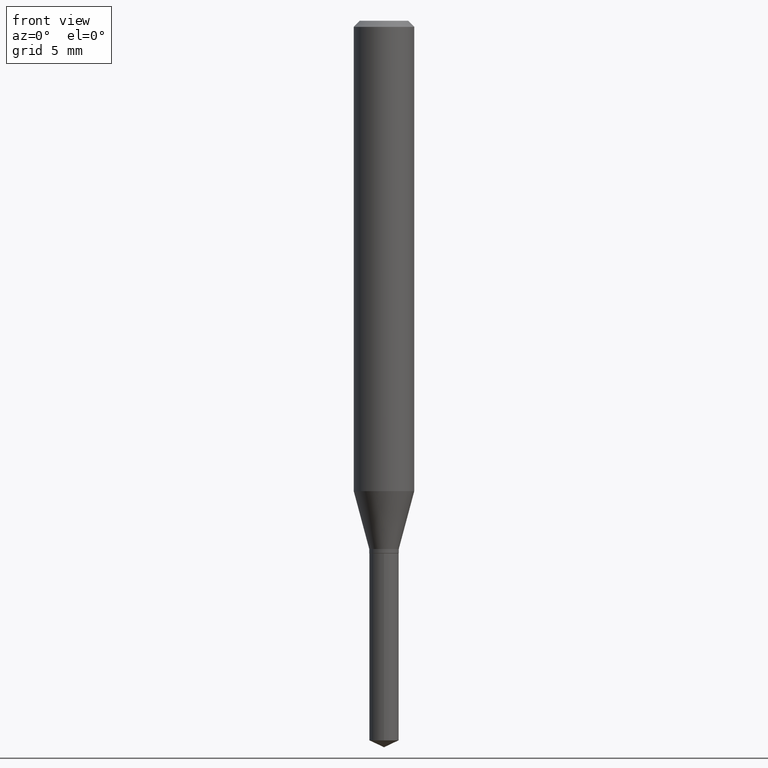
[diagram: clean part render]
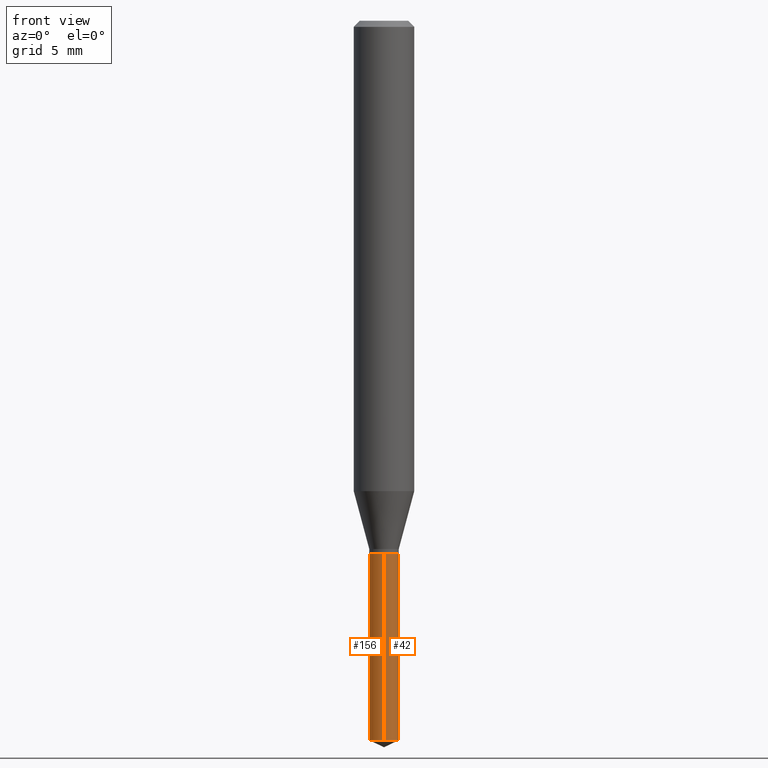
[diagram: same view with one multi-face feature highlighted, each face labeled with its STEP entity id]
A machine part, front view. The highlighted faces form ONE feature: a constant-radius fillet chain: 2 tangent blend faces with common blend radius 0.7747 mm. The faces share edges in the B-rep.
Their STEP definitions:
[1] entity #42 (Cylinder):
#1 = FACE_OUTER_BOUND ( 'NONE', #263, .T. ) ;
#7 = AXIS2_PLACEMENT_3D ( 'NONE', #382, #159, #8 ) ;
#8 = DIRECTION ( 'NONE',  ( -6.982962677686265922E-15, -1.000000000000000000, 4.478439333875842027E-15 ) ) ;
#14 = CARTESIAN_POINT ( 'NONE',  ( 2.167155344068669628E-16, 0.03049999999999615866, -1.100000000000000089 ) ) ;
#22 = CARTESIAN_POINT ( 'NONE',  ( 2.167155344068573979E-16, 0.03049999999999615519, -1.100000000000000089 ) ) ;
#27 = LINE ( 'NONE', #22, #45 ) ;
#42 = ADVANCED_FACE ( 'NONE', ( #1 ), #341, .T. ) ;
#45 = VECTOR ( 'NONE', #223, 39.37007874015748143 ) ;
#54 = DIRECTION ( 'NONE',  ( -6.982962677686265922E-15, -1.000000000000000000, 0.000000000000000000 ) ) ;
#59 = EDGE_CURVE ( 'NONE', #404, #162, #271, .T. ) ;
#95 = CARTESIAN_POINT ( 'NONE',  ( 3.633396150581541585E-29, -5.187603004810727397E-15, -1.485777616426273040 ) ) ;
#110 = EDGE_CURVE ( 'NONE', #363, #404, #302, .T. ) ;
#119 = DIRECTION ( 'NONE',  ( -2.445399690415121530E-29, 3.491580316559632610E-15, 1.000000000000000000 ) ) ;
#136 = CARTESIAN_POINT ( 'NONE',  ( 2.167155344068668396E-16, 0.03049999999999481251, -1.485777616426273040 ) ) ;
#159 = DIRECTION ( 'NONE',  ( -2.445399690415121530E-29, 3.491580316559632610E-15, 1.000000000000000000 ) ) ;
#162 = VERTEX_POINT ( 'NONE', #14 ) ;
#181 = ORIENTED_EDGE ( 'NONE', *, *, #438, .T. ) ;
#205 = AXIS2_PLACEMENT_3D ( 'NONE', #419, #119, #272 ) ;
#223 = DIRECTION ( 'NONE',  ( -2.445399690415121810E-29, 3.491580316559632610E-15, 1.000000000000000000 ) ) ;
#263 = EDGE_LOOP ( 'NONE', ( #328, #181, #442, #356 ) ) ;
#271 = CIRCLE ( 'NONE', #7, 0.03049999999999999586 ) ;
#272 = DIRECTION ( 'NONE',  ( -6.982962677686265922E-15, -1.000000000000000000, 4.478439333875842027E-15 ) ) ;
#275 = DIRECTION ( 'NONE',  ( -2.445399690415121530E-29, 3.491580316559632610E-15, 1.000000000000000000 ) ) ;
#284 = AXIS2_PLACEMENT_3D ( 'NONE', #95, #275, #54 ) ;
#297 = CARTESIAN_POINT ( 'NONE',  ( -2.129803616694041823E-16, -0.03050000000000384001, -1.099999999999999867 ) ) ;
#302 = LINE ( 'NONE', #304, #423 ) ;
#304 = CARTESIAN_POINT ( 'NONE',  ( -2.129803616694041823E-16, -0.03050000000000384001, -1.099999999999999867 ) ) ;
#313 = CIRCLE ( 'NONE', #284, 0.03049999999999999586 ) ;
#328 = ORIENTED_EDGE ( 'NONE', *, *, #336, .T. ) ;
#336 = EDGE_CURVE ( 'NONE', #363, #462, #313, .T. ) ;
#341 = CYLINDRICAL_SURFACE ( 'NONE', #205, 0.03049999999999999586 ) ;
#356 = ORIENTED_EDGE ( 'NONE', *, *, #110, .F. ) ;
#363 = VERTEX_POINT ( 'NONE', #481 ) ;
#382 = CARTESIAN_POINT ( 'NONE',  ( 2.690015686803650369E-29, -3.840629472727460101E-15, -1.100000000000000089 ) ) ;
#383 = DIRECTION ( 'NONE',  ( -2.445399690415121810E-29, 3.491580316559632610E-15, 1.000000000000000000 ) ) ;
#404 = VERTEX_POINT ( 'NONE', #297 ) ;
#419 = CARTESIAN_POINT ( 'NONE',  ( 2.690015686803650369E-29, -3.840629472727460101E-15, -1.100000000000000089 ) ) ;
#423 = VECTOR ( 'NONE', #383, 39.37007874015748143 ) ;
#438 = EDGE_CURVE ( 'NONE', #462, #162, #27, .T. ) ;
#442 = ORIENTED_EDGE ( 'NONE', *, *, #59, .F. ) ;
#462 = VERTEX_POINT ( 'NONE', #136 ) ;
#481 = CARTESIAN_POINT ( 'NONE',  ( -2.129803616693947899E-16, -0.03050000000000518616, -1.485777616426273040 ) ) ;
[2] entity #156 (Cylinder):
#14 = CARTESIAN_POINT ( 'NONE',  ( 2.167155344068669628E-16, 0.03049999999999615866, -1.100000000000000089 ) ) ;
#16 = DIRECTION ( 'NONE',  ( -2.445399690415121530E-29, 3.491580316559632610E-15, 1.000000000000000000 ) ) ;
#22 = CARTESIAN_POINT ( 'NONE',  ( 2.167155344068573979E-16, 0.03049999999999615519, -1.100000000000000089 ) ) ;
#24 = CARTESIAN_POINT ( 'NONE',  ( 2.690015686803650369E-29, -3.840629472727460101E-15, -1.100000000000000089 ) ) ;
#27 = LINE ( 'NONE', #22, #45 ) ;
#35 = DIRECTION ( 'NONE',  ( -2.445399690415121530E-29, 3.491580316559632610E-15, 1.000000000000000000 ) ) ;
#40 = CARTESIAN_POINT ( 'NONE',  ( 2.690015686803650369E-29, -3.840629472727460101E-15, -1.100000000000000089 ) ) ;
#45 = VECTOR ( 'NONE', #223, 39.37007874015748143 ) ;
#52 = EDGE_CURVE ( 'NONE', #462, #363, #231, .T. ) ;
#101 = ORIENTED_EDGE ( 'NONE', *, *, #110, .T. ) ;
#110 = EDGE_CURVE ( 'NONE', #363, #404, #302, .T. ) ;
#120 = DIRECTION ( 'NONE',  ( -6.982962677686265922E-15, -1.000000000000000000, 4.478439333875842027E-15 ) ) ;
#136 = CARTESIAN_POINT ( 'NONE',  ( 2.167155344068668396E-16, 0.03049999999999481251, -1.485777616426273040 ) ) ;
#156 = ADVANCED_FACE ( 'NONE', ( #415 ), #380, .T. ) ;
#162 = VERTEX_POINT ( 'NONE', #14 ) ;
#172 = ORIENTED_EDGE ( 'NONE', *, *, #454, .F. ) ;
#223 = DIRECTION ( 'NONE',  ( -2.445399690415121810E-29, 3.491580316559632610E-15, 1.000000000000000000 ) ) ;
#224 = EDGE_LOOP ( 'NONE', ( #437, #468, #101, #172 ) ) ;
#225 = CARTESIAN_POINT ( 'NONE',  ( 3.633396150581541585E-29, -5.187603004810727397E-15, -1.485777616426273040 ) ) ;
#231 = CIRCLE ( 'NONE', #450, 0.03049999999999999586 ) ;
#264 = CIRCLE ( 'NONE', #322, 0.03049999999999999586 ) ;
#297 = CARTESIAN_POINT ( 'NONE',  ( -2.129803616694041823E-16, -0.03050000000000384001, -1.099999999999999867 ) ) ;
#302 = LINE ( 'NONE', #304, #423 ) ;
#304 = CARTESIAN_POINT ( 'NONE',  ( -2.129803616694041823E-16, -0.03050000000000384001, -1.099999999999999867 ) ) ;
#320 = DIRECTION ( 'NONE',  ( -2.445399690415121530E-29, 3.491580316559632610E-15, 1.000000000000000000 ) ) ;
#322 = AXIS2_PLACEMENT_3D ( 'NONE', #24, #320, #471 ) ;
#363 = VERTEX_POINT ( 'NONE', #481 ) ;
#370 = AXIS2_PLACEMENT_3D ( 'NONE', #40, #16, #120 ) ;
#380 = CYLINDRICAL_SURFACE ( 'NONE', #370, 0.03049999999999999586 ) ;
#383 = DIRECTION ( 'NONE',  ( -2.445399690415121810E-29, 3.491580316559632610E-15, 1.000000000000000000 ) ) ;
#404 = VERTEX_POINT ( 'NONE', #297 ) ;
#415 = FACE_OUTER_BOUND ( 'NONE', #224, .T. ) ;
#423 = VECTOR ( 'NONE', #383, 39.37007874015748143 ) ;
#437 = ORIENTED_EDGE ( 'NONE', *, *, #438, .F. ) ;
#438 = EDGE_CURVE ( 'NONE', #462, #162, #27, .T. ) ;
#450 = AXIS2_PLACEMENT_3D ( 'NONE', #225, #35, #457 ) ;
#454 = EDGE_CURVE ( 'NONE', #162, #404, #264, .T. ) ;
#457 = DIRECTION ( 'NONE',  ( -6.982962677686265922E-15, -1.000000000000000000, 0.000000000000000000 ) ) ;
#462 = VERTEX_POINT ( 'NONE', #136 ) ;
#468 = ORIENTED_EDGE ( 'NONE', *, *, #52, .T. ) ;
#471 = DIRECTION ( 'NONE',  ( -6.982962677686265922E-15, -1.000000000000000000, 4.478439333875842027E-15 ) ) ;
#481 = CARTESIAN_POINT ( 'NONE',  ( -2.129803616693947899E-16, -0.03050000000000518616, -1.485777616426273040 ) ) ;